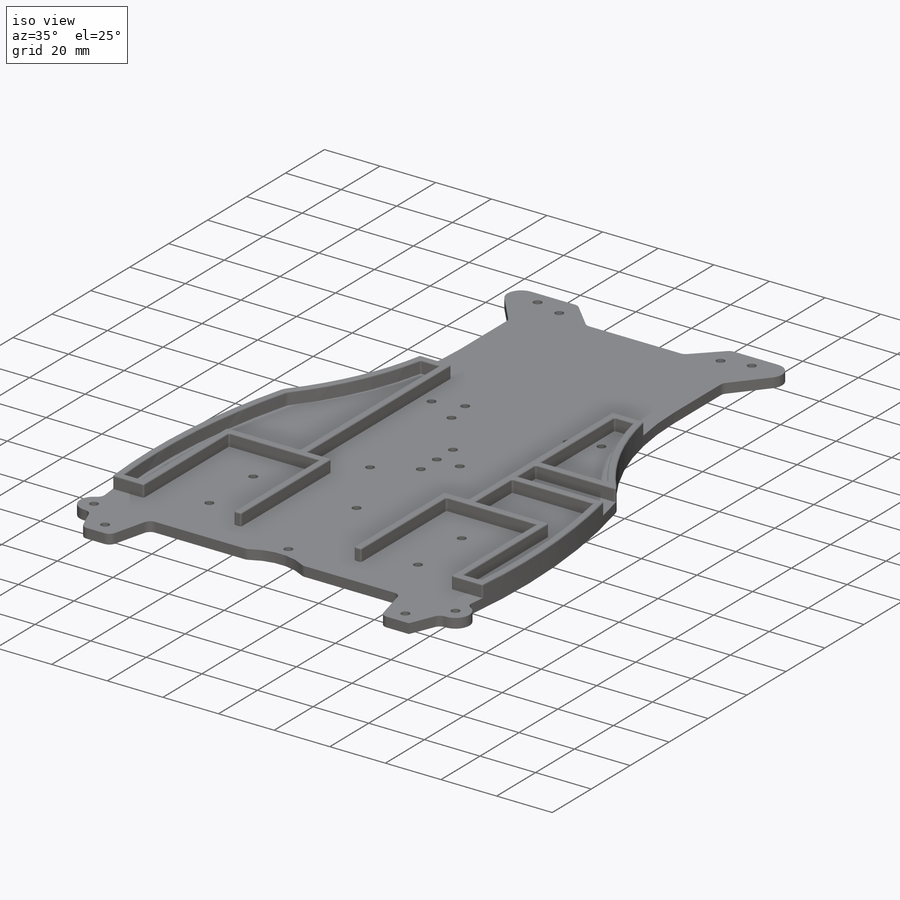
[diagram: iso view]
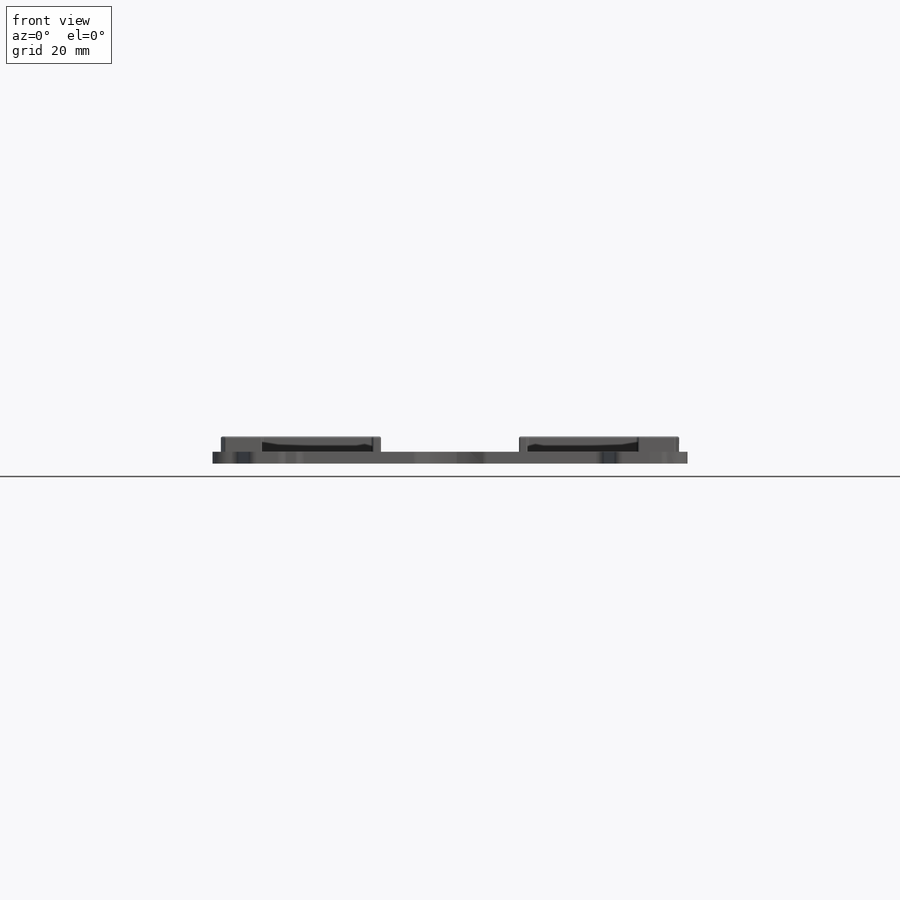
[diagram: front view]
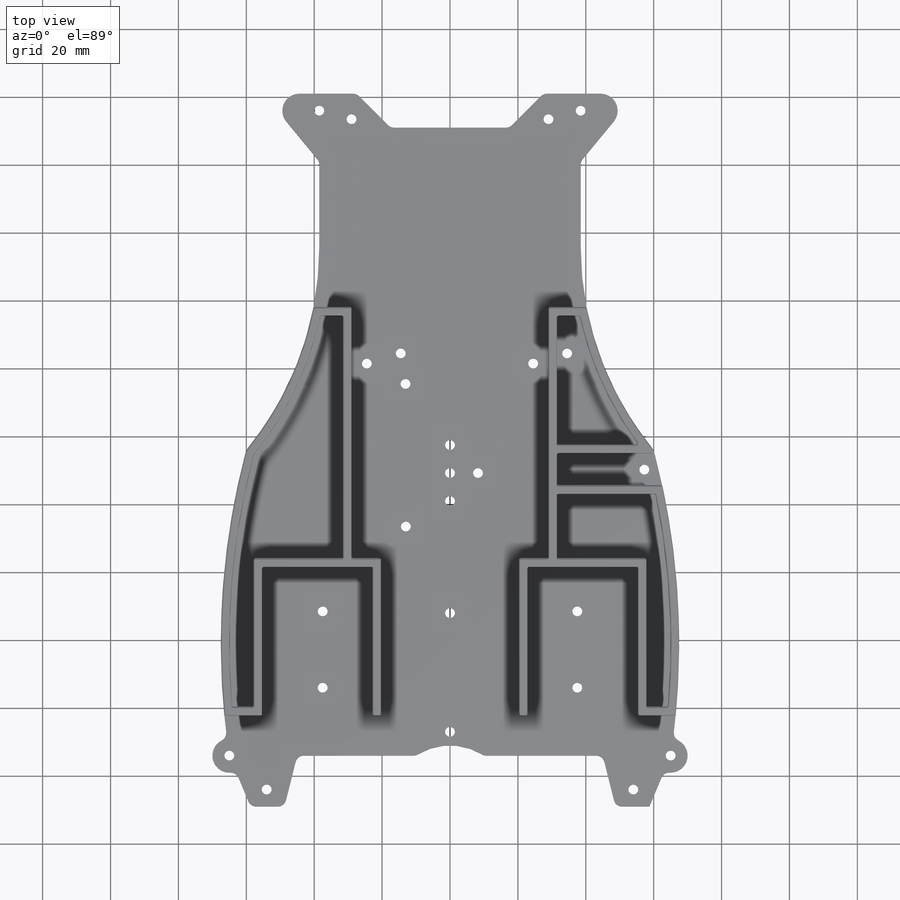
[diagram: top view]
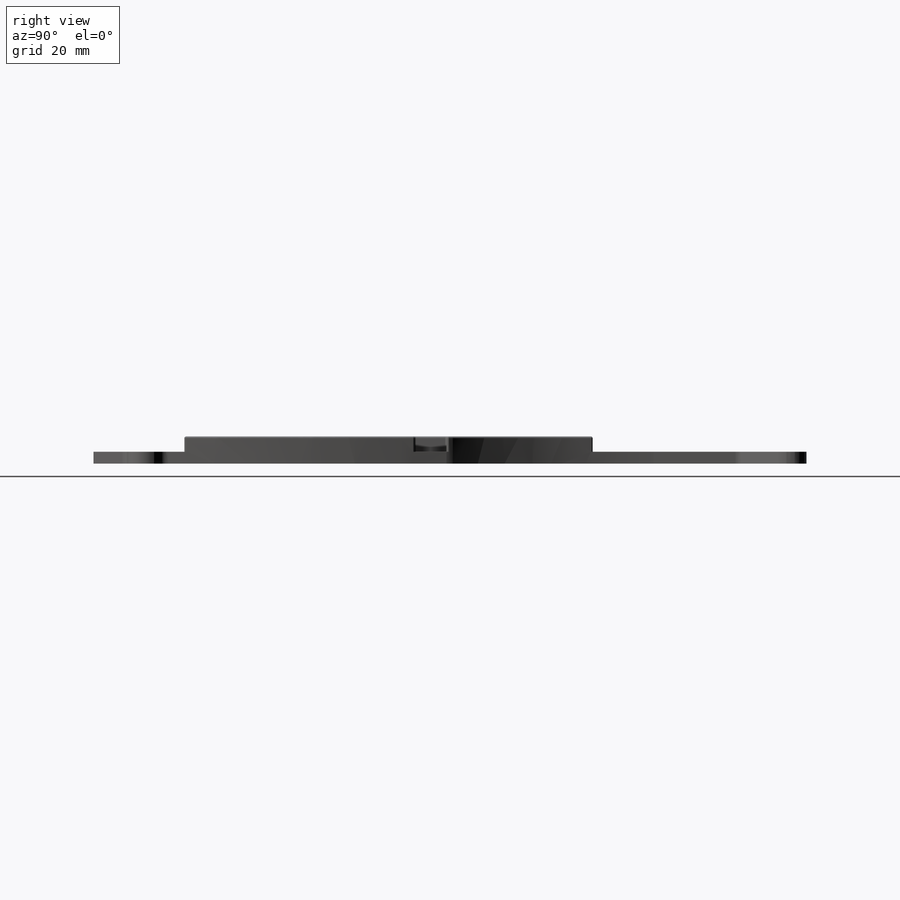
[diagram: right view]
SOLIDWORKS PART (.sldprt)
format: sldprt  version: not decoded by parser v0  size: 1,013,760 bytes
history: native  units: mm
features: sketch x7, fillet x3, hole x2, cut_extrude x2, material x1, extrude x1, mirror x1 (+12 scaffold rows collapsed)
feature tree (29):
  scaffold x12  (default folders/planes/origin — collapsed)
  material  "Delrin 2700 NC010, Low Viscosity Acetal Copolymer (SS)"
  sketch  "Sketch1"  dims[c1.D19=10.0mm c1.D20=10.0mm c1.D21=10.0mm c1.D9=10.0mm c1.D1=70.0mm c1.D2=210.0mm c1.D3=60.0mm c1.D4=10.0mm c1.D5=5.0mm c2.D1=70.0mm c2.D6=3.0mm c2.D7=15.0mm c2.D8=10.0mm c3.D1=70.0mm c3.D2=210.0mm c3.D3=10.0mm c3.D8=10.0mm c3.D9=7.5mm c3.D10=35.0mm c3.D11=38.5mm c3.D12=20.0mm c3.D13=25.0mm c3.D14=55.0mm c3.D15=27.5mm c3.D16=10.0mm c3.D17=17.5mm c3.D18=105.0mm c4.D9=70.0mm c4.D19=7.5mm c4.D5=48.75mm c5.D9=65.0mm c5.D4=17.5mm c5.D20=~70.897321mm c6.D4=67.5mm c6.D20=15.0mm c6.D21=~62.006653mm c6.D9=65.0mm c7.D4=60.0mm c7.D21=~55.399974mm c8.D21=0.1308deg c9.D21=67.5mm]
  extrude  "Boss-Extrude1"  Depth=8mm
  hole  "CSK for M2.5 Flat Head Machine Screw1"  Diameter=2.9mm Depth=8mm
  sketch  "Sketch5"  dims[c1.D1=54.0mm c1.D2=5.0mm c1.D3=22.0mm c1.D4=35.0mm c1.D5=79.0mm c1.D6=87.5mm c1.D7=96.0mm c1.D8=22.5mm c1.D9=35.0mm c1.D10=37.5mm c1.D11=24.5mm c1.D12=130.0mm c1.D13=5.0mm c1.D14=7.5mm c1.D15=29.0mm c1.D16=38.5mm c1.D17=101.0mm c2.D5=8.25mm c2.D6=8.25mm c2.D7=120.0mm c2.D12=24.0mm]
  sketch  "Sketch4"  dims[hole-wizard template sketch: 55 standard entries collapsed; hole parameters kept: c17.Thru Hole Depth=8.0mm c17.Near C'Sink Dia.=5.5mm c17.D4=~3.666174mm c17.Near C'Sink Angle=90.0deg]
  mirror  "Mirror1"
  hole  "CSK for M2.5 Flat Head Machine Screw2"  Diameter=2.9mm Depth=8mm
  sketch  "Sketch7"  dims[c1.D4=2.9mm c1.D5=2.9mm c1.D7=2.9mm c1.D1=8.25mm c1.D2=1.0mm c1.D3=49.0mm c2.D4=7.5mm c2.D5=13.0mm c2.D6=10.0mm c2.D7=10.0mm c2.D8=3.0mm c2.D9=9.0mm c2.D10=1.4mm c2.D11=~33.227235mm]
  sketch  "Sketch6"  dims[hole-wizard template sketch: 55 standard entries collapsed; hole parameters kept: c17.Thru Hole Depth=8.0mm c17.Near C'Sink Dia.=5.5mm c17.D4=~3.666174mm c17.Near C'Sink Angle=90.0deg]
  fillet  "Fillet1"  Radius=2.5mm
  fillet  "Fillet2"  Radius=5mm
  sketch  "Sketch8"  dims[D2=63.0mm D1=0.0mm]
  cut_extrude  "Cut-Extrude1"  Depth=4.5mm
  sketch  "Sketch9"  dims[c1.D8=2.9mm c1.D2=10.0mm c1.D3=10.0mm c1.D4=35.0mm c1.D5=45.0mm c1.D6=28.0mm c1.D7=6.0mm c2.D8=6.0mm c2.D1=2.5mm c2.D9=1.25mm c2.D10=1.25mm c2.D11=1.25mm c2.D12=1.25mm c2.D13=1.25mm c2.D14=1.25mm]
  cut_extrude  "Cut-Extrude3"  Depth=4.5mm
  fillet  "Fillet3"  Radius=0.5mm
decode coverage: 15 of 16 modeling features carry decoded parameters
note: ~ marks probable driven/reference dimensions
note: suppression state not decoded; provenance and decode notes live in map.json
